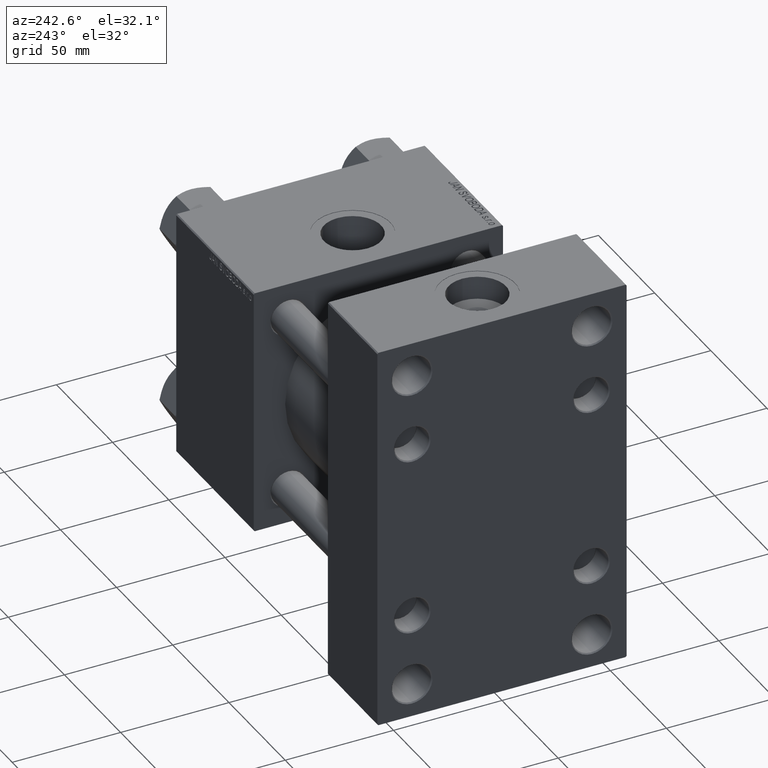
[diagram: clean part render]
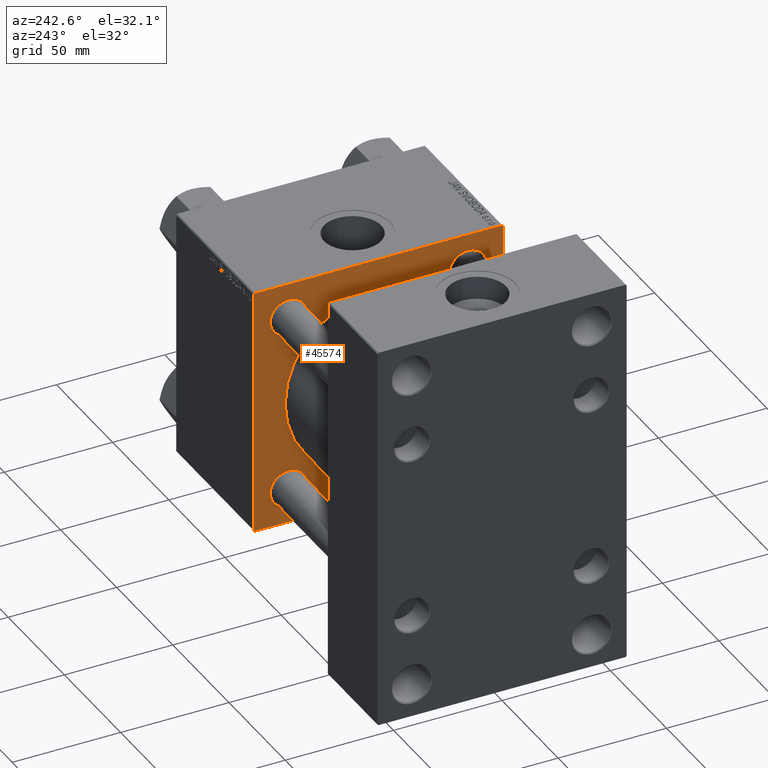
[diagram: same view with one face highlighted and labeled with its STEP entity id]
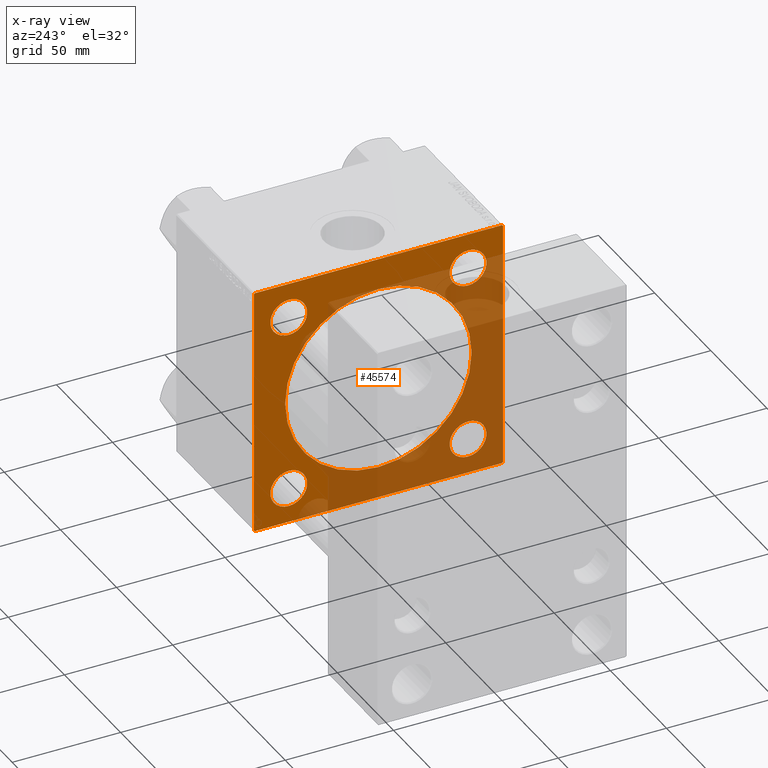
[diagram: x-ray of the same camera — body ghosted, the highlighted face saturated]
A machine part, auxiliary view. The second image highlights one B-rep face of the part: STEP entity #45574.
The next image is the same camera in x-ray: the body ghosted, the highlighted face saturated — about 48% of this face is hidden behind the body in this view.
In plain terms, the highlighted planar face has unit normal (-1, 0, 0).
Its self-contained STEP definition (entity closure, byte-faithful):
#1096 = CARTESIAN_POINT ( 'NONE',  ( 110.0000000000000000, 2.663896022368408223E-15, -43.00000000000000000 ) ) ;
#1268 = EDGE_CURVE ( 'NONE', #13374, #6201, #14931, .T. ) ;
#1308 = ORIENTED_EDGE ( 'NONE', *, *, #14150, .T. ) ;
#1737 = VERTEX_POINT ( 'NONE', #25054 ) ;
#2144 = LINE ( 'NONE', #24595, #23057 ) ;
#2220 = VECTOR ( 'NONE', #29420, 1000.000000000000000 ) ;
#2839 = CIRCLE ( 'NONE', #19927, 43.00000000000000000 ) ;
#4101 = LINE ( 'NONE', #4597, #12709 ) ;
#4143 = CARTESIAN_POINT ( 'NONE',  ( 110.0000000000000000, -57.25000000000117950, -57.24999999999879918 ) ) ;
#4155 = EDGE_CURVE ( 'NONE', #20512, #32392, #2839, .T. ) ;
#4597 = CARTESIAN_POINT ( 'NONE',  ( 110.0000000000000000, 57.50000000000000000, -57.49999999999996447 ) ) ;
#4680 = VECTOR ( 'NONE', #15328, 1000.000000000000000 ) ;
#5258 = ORIENTED_EDGE ( 'NONE', *, *, #12488, .T. ) ;
#5855 = EDGE_CURVE ( 'NONE', #6201, #13374, #27214, .T. ) ;
#6056 = ORIENTED_EDGE ( 'NONE', *, *, #1268, .T. ) ;
#6201 = VERTEX_POINT ( 'NONE', #44701 ) ;
#6450 = VERTEX_POINT ( 'NONE', #17505 ) ;
#6710 = LINE ( 'NONE', #10771, #30914 ) ;
#6880 = DIRECTION ( 'NONE',  ( 1.000000000000000000, -0.000000000000000000, 0.000000000000000000 ) ) ;
#7529 = ORIENTED_EDGE ( 'NONE', *, *, #4155, .T. ) ;
#7714 = AXIS2_PLACEMENT_3D ( 'NONE', #41591, #25758, #45415 ) ;
#7779 = CARTESIAN_POINT ( 'NONE',  ( 110.0000000000000000, -41.34999999999998721, -41.35000000000000853 ) ) ;
#8252 = ORIENTED_EDGE ( 'NONE', *, *, #34180, .T. ) ;
#8309 = ORIENTED_EDGE ( 'NONE', *, *, #33064, .T. ) ;
#8617 = ORIENTED_EDGE ( 'NONE', *, *, #11224, .T. ) ;
#8866 = LINE ( 'NONE', #40012, #22614 ) ;
#9639 = DIRECTION ( 'NONE',  ( 1.000000000000000000, 0.000000000000000000, 0.000000000000000000 ) ) ;
#9655 = EDGE_CURVE ( 'NONE', #42809, #18803, #17510, .T. ) ;
#10030 = DIRECTION ( 'NONE',  ( 0.000000000000000000, 0.000000000000000000, 1.000000000000000000 ) ) ;
#10059 = DIRECTION ( 'NONE',  ( 1.000000000000000000, -0.000000000000000000, 0.000000000000000000 ) ) ;
#10268 = AXIS2_PLACEMENT_3D ( 'NONE', #24277, #21190, #36758 ) ;
#10771 = CARTESIAN_POINT ( 'NONE',  ( 110.0000000000000000, 57.25000000000159872, 57.24999999999842970 ) ) ;
#11018 = DIRECTION ( 'NONE',  ( 0.000000000000000000, 0.000000000000000000, -1.000000000000000000 ) ) ;
#11224 = EDGE_CURVE ( 'NONE', #14799, #12383, #42094, .T. ) ;
#11510 = DIRECTION ( 'NONE',  ( -1.000000000000000000, 0.000000000000000000, -0.000000000000000000 ) ) ;
#11641 = ORIENTED_EDGE ( 'NONE', *, *, #49983, .T. ) ;
#12383 = VERTEX_POINT ( 'NONE', #47966 ) ;
#12488 = EDGE_CURVE ( 'NONE', #37926, #28190, #37203, .T. ) ;
#12699 = VERTEX_POINT ( 'NONE', #27269 ) ;
#12709 = VECTOR ( 'NONE', #19650, 1000.000000000000000 ) ;
#12978 = ORIENTED_EDGE ( 'NONE', *, *, #46031, .T. ) ;
#13097 = VERTEX_POINT ( 'NONE', #22768 ) ;
#13374 = VERTEX_POINT ( 'NONE', #39272 ) ;
#13852 = CARTESIAN_POINT ( 'NONE',  ( 110.0000000000000000, -41.34999999999998721, 41.35000000000000853 ) ) ;
#13949 = DIRECTION ( 'NONE',  ( -0.000000000000000000, -0.7071067811865474617, -0.7071067811865474617 ) ) ;
#14150 = EDGE_CURVE ( 'NONE', #1737, #26253, #6710, .T. ) ;
#14454 = CIRCLE ( 'NONE', #41373, 8.500000000000007105 ) ;
#14799 = VERTEX_POINT ( 'NONE', #16977 ) ;
#14816 = CARTESIAN_POINT ( 'NONE',  ( 110.0000000000000000, -41.34999999999998721, 49.85000000000002274 ) ) ;
#14931 = CIRCLE ( 'NONE', #49966, 8.500000000000007105 ) ;
#15328 = DIRECTION ( 'NONE',  ( 0.000000000000000000, 0.000000000000000000, -1.000000000000000000 ) ) ;
#15598 = EDGE_LOOP ( 'NONE', ( #8309, #33705 ) ) ;
#16551 = EDGE_LOOP ( 'NONE', ( #7529, #28472 ) ) ;
#16977 = CARTESIAN_POINT ( 'NONE',  ( 110.0000000000000000, 41.34999999999999432, -49.85000000000001563 ) ) ;
#17505 = CARTESIAN_POINT ( 'NONE',  ( 110.0000000000000000, -57.49999999999999289, -56.99999999999997868 ) ) ;
#17510 = CIRCLE ( 'NONE', #49312, 8.500000000000007105 ) ;
#17970 = CARTESIAN_POINT ( 'NONE',  ( 110.0000000000000000, 57.50000000000000000, 57.50000000000000711 ) ) ;
#18201 = CARTESIAN_POINT ( 'NONE',  ( 110.0000000000000000, 57.50000000000000000, 57.00000000000000711 ) ) ;
#18253 = DIRECTION ( 'NONE',  ( 0.000000000000000000, 0.000000000000000000, 1.000000000000000000 ) ) ;
#18711 = CARTESIAN_POINT ( 'NONE',  ( 110.0000000000000000, 57.50000000000000000, -56.99999999999994316 ) ) ;
#18803 = VERTEX_POINT ( 'NONE', #37963 ) ;
#19011 = DIRECTION ( 'NONE',  ( 1.000000000000000000, -0.000000000000000000, 0.000000000000000000 ) ) ;
#19390 = DIRECTION ( 'NONE',  ( 0.000000000000000000, 0.000000000000000000, 1.000000000000000000 ) ) ;
#19650 = DIRECTION ( 'NONE',  ( 0.000000000000000000, -1.000000000000000000, -1.206764157201257291E-16 ) ) ;
#19927 = AXIS2_PLACEMENT_3D ( 'NONE', #23018, #35027, #11018 ) ;
#20512 = VERTEX_POINT ( 'NONE', #38649 ) ;
#20986 = CIRCLE ( 'NONE', #49508, 8.500000000000007105 ) ;
#21190 = DIRECTION ( 'NONE',  ( 1.000000000000000000, -0.000000000000000000, 0.000000000000000000 ) ) ;
#21325 = EDGE_CURVE ( 'NONE', #32392, #20512, #24588, .T. ) ;
#21721 = CARTESIAN_POINT ( 'NONE',  ( 110.0000000000000000, 56.99999999999997158, -57.49999999999996447 ) ) ;
#22001 = LINE ( 'NONE', #44725, #2220 ) ;
#22614 = VECTOR ( 'NONE', #13949, 1000.000000000000114 ) ;
#22768 = CARTESIAN_POINT ( 'NONE',  ( 110.0000000000000000, -57.00000000000001421, -57.49999999999997868 ) ) ;
#23018 = CARTESIAN_POINT ( 'NONE',  ( 110.0000000000000000, -2.602085213965210642E-15, 0.000000000000000000 ) ) ;
#23057 = VECTOR ( 'NONE', #33016, 1000.000000000000000 ) ;
#23125 = ORIENTED_EDGE ( 'NONE', *, *, #47619, .T. ) ;
#23884 = CARTESIAN_POINT ( 'NONE',  ( 110.0000000000000000, -57.00000000000004263, 57.49999999999999289 ) ) ;
#24277 = CARTESIAN_POINT ( 'NONE',  ( 110.0000000000000000, 41.34999999999999432, -41.35000000000000142 ) ) ;
#24588 = CIRCLE ( 'NONE', #31915, 43.00000000000000000 ) ;
#24595 = CARTESIAN_POINT ( 'NONE',  ( 110.0000000000000000, 57.50000000000000000, 57.50000000000000711 ) ) ;
#25054 = CARTESIAN_POINT ( 'NONE',  ( 110.0000000000000000, 57.00000000000002842, 57.50000000000000711 ) ) ;
#25259 = EDGE_LOOP ( 'NONE', ( #11641, #8617 ) ) ;
#25332 = DIRECTION ( 'NONE',  ( 0.000000000000000000, 0.7071067811865279218, -0.7071067811865671127 ) ) ;
#25758 = DIRECTION ( 'NONE',  ( 1.000000000000000000, -0.000000000000000000, 0.000000000000000000 ) ) ;
#26253 = VERTEX_POINT ( 'NONE', #18201 ) ;
#26336 = FACE_BOUND ( 'NONE', #25259, .T. ) ;
#26592 = CARTESIAN_POINT ( 'NONE',  ( 110.0000000000000000, 0.000000000000000000, 0.000000000000000000 ) ) ;
#26843 = DIRECTION ( 'NONE',  ( 1.000000000000000000, -0.000000000000000000, 0.000000000000000000 ) ) ;
#27085 = CARTESIAN_POINT ( 'NONE',  ( 110.0000000000000000, -57.49999999999999289, 57.49999999999999289 ) ) ;
#27214 = CIRCLE ( 'NONE', #38634, 8.500000000000007105 ) ;
#27269 = CARTESIAN_POINT ( 'NONE',  ( 110.0000000000000000, -57.49999999999999289, 57.00000000000004974 ) ) ;
#28081 = CIRCLE ( 'NONE', #7714, 8.500000000000007105 ) ;
#28190 = VERTEX_POINT ( 'NONE', #14816 ) ;
#28427 = ORIENTED_EDGE ( 'NONE', *, *, #5855, .T. ) ;
#28469 = DIRECTION ( 'NONE',  ( 0.000000000000000000, 0.000000000000000000, 1.000000000000000000 ) ) ;
#28472 = ORIENTED_EDGE ( 'NONE', *, *, #21325, .T. ) ;
#28849 = EDGE_CURVE ( 'NONE', #1737, #37842, #2144, .T. ) ;
#29420 = DIRECTION ( 'NONE',  ( -0.000000000000000000, 0.7071067811865524577, 0.7071067811865426878 ) ) ;
#30705 = VECTOR ( 'NONE', #35278, 1000.000000000000000 ) ;
#30779 = VERTEX_POINT ( 'NONE', #18711 ) ;
#30914 = VECTOR ( 'NONE', #25332, 1000.000000000000000 ) ;
#30920 = LINE ( 'NONE', #17970, #37084 ) ;
#30923 = DIRECTION ( 'NONE',  ( 0.000000000000000000, 0.000000000000000000, 1.000000000000000000 ) ) ;
#31644 = DIRECTION ( 'NONE',  ( 1.000000000000000000, -0.000000000000000000, 0.000000000000000000 ) ) ;
#31915 = AXIS2_PLACEMENT_3D ( 'NONE', #44628, #9639, #45126 ) ;
#32392 = VERTEX_POINT ( 'NONE', #1096 ) ;
#33016 = DIRECTION ( 'NONE',  ( 0.000000000000000000, -1.000000000000000000, -1.206764157201257291E-16 ) ) ;
#33064 = EDGE_CURVE ( 'NONE', #18803, #42809, #28081, .T. ) ;
#33088 = ORIENTED_EDGE ( 'NONE', *, *, #50433, .T. ) ;
#33542 = ORIENTED_EDGE ( 'NONE', *, *, #45433, .T. ) ;
#33691 = DIRECTION ( 'NONE',  ( 0.000000000000000000, 0.000000000000000000, 1.000000000000000000 ) ) ;
#33705 = ORIENTED_EDGE ( 'NONE', *, *, #9655, .T. ) ;
#33985 = AXIS2_PLACEMENT_3D ( 'NONE', #38017, #6880, #33691 ) ;
#34180 = EDGE_CURVE ( 'NONE', #26253, #30779, #30920, .T. ) ;
#35012 = FACE_BOUND ( 'NONE', #44074, .T. ) ;
#35027 = DIRECTION ( 'NONE',  ( 1.000000000000000000, 0.000000000000000000, 0.000000000000000000 ) ) ;
#35229 = CARTESIAN_POINT ( 'NONE',  ( 110.0000000000000000, 41.34999999999999432, -41.35000000000000142 ) ) ;
#35278 = DIRECTION ( 'NONE',  ( 0.000000000000000000, -0.7071067811865328068, 0.7071067811865622277 ) ) ;
#36758 = DIRECTION ( 'NONE',  ( 0.000000000000000000, 0.000000000000000000, 1.000000000000000000 ) ) ;
#37084 = VECTOR ( 'NONE', #50279, 1000.000000000000000 ) ;
#37203 = CIRCLE ( 'NONE', #33985, 8.500000000000007105 ) ;
#37302 = ORIENTED_EDGE ( 'NONE', *, *, #45515, .F. ) ;
#37842 = VERTEX_POINT ( 'NONE', #23884 ) ;
#37926 = VERTEX_POINT ( 'NONE', #40967 ) ;
#37963 = CARTESIAN_POINT ( 'NONE',  ( 110.0000000000000000, 41.34999999999999432, 49.85000000000001563 ) ) ;
#38017 = CARTESIAN_POINT ( 'NONE',  ( 110.0000000000000000, -41.34999999999998721, 41.35000000000000853 ) ) ;
#38579 = PLANE ( 'NONE',  #38891 ) ;
#38634 = AXIS2_PLACEMENT_3D ( 'NONE', #7779, #19011, #18253 ) ;
#38649 = CARTESIAN_POINT ( 'NONE',  ( 110.0000000000000000, -2.602085213965210642E-15, 43.00000000000000000 ) ) ;
#38828 = DIRECTION ( 'NONE',  ( -0.000000000000000000, 0.000000000000000000, 1.000000000000000000 ) ) ;
#38891 = AXIS2_PLACEMENT_3D ( 'NONE', #26592, #11510, #38828 ) ;
#39272 = CARTESIAN_POINT ( 'NONE',  ( 110.0000000000000000, -41.34999999999998721, -32.85000000000000142 ) ) ;
#39868 = CARTESIAN_POINT ( 'NONE',  ( 110.0000000000000000, 41.34999999999999432, 32.84999999999999432 ) ) ;
#40012 = CARTESIAN_POINT ( 'NONE',  ( 110.0000000000000000, 57.24999999999996447, -57.24999999999996447 ) ) ;
#40967 = CARTESIAN_POINT ( 'NONE',  ( 110.0000000000000000, -41.34999999999998721, 32.85000000000000142 ) ) ;
#41373 = AXIS2_PLACEMENT_3D ( 'NONE', #35229, #31644, #19390 ) ;
#41591 = CARTESIAN_POINT ( 'NONE',  ( 110.0000000000000000, 41.34999999999999432, 41.35000000000000142 ) ) ;
#41904 = LINE ( 'NONE', #27085, #4680 ) ;
#42094 = CIRCLE ( 'NONE', #10268, 8.500000000000007105 ) ;
#42809 = VERTEX_POINT ( 'NONE', #39868 ) ;
#42848 = VERTEX_POINT ( 'NONE', #21721 ) ;
#43834 = EDGE_CURVE ( 'NONE', #42848, #13097, #4101, .T. ) ;
#44074 = EDGE_LOOP ( 'NONE', ( #6056, #28427 ) ) ;
#44278 = CARTESIAN_POINT ( 'NONE',  ( 110.0000000000000000, 41.34999999999999432, 41.35000000000000142 ) ) ;
#44505 = DIRECTION ( 'NONE',  ( 1.000000000000000000, -0.000000000000000000, 0.000000000000000000 ) ) ;
#44628 = CARTESIAN_POINT ( 'NONE',  ( 110.0000000000000000, -2.602085213965210642E-15, 0.000000000000000000 ) ) ;
#44701 = CARTESIAN_POINT ( 'NONE',  ( 110.0000000000000000, -41.34999999999998721, -49.85000000000002274 ) ) ;
#44725 = CARTESIAN_POINT ( 'NONE',  ( 110.0000000000000000, -57.24999999999962341, 57.25000000000041211 ) ) ;
#44808 = ORIENTED_EDGE ( 'NONE', *, *, #43834, .T. ) ;
#45063 = ORIENTED_EDGE ( 'NONE', *, *, #28849, .F. ) ;
#45126 = DIRECTION ( 'NONE',  ( 0.000000000000000000, 0.000000000000000000, -1.000000000000000000 ) ) ;
#45415 = DIRECTION ( 'NONE',  ( 0.000000000000000000, 0.000000000000000000, 1.000000000000000000 ) ) ;
#45433 = EDGE_CURVE ( 'NONE', #12699, #37842, #22001, .T. ) ;
#45515 = EDGE_CURVE ( 'NONE', #12699, #6450, #41904, .T. ) ;
#45574 = ADVANCED_FACE ( 'NONE', ( #49539, #50281, #26336, #35012, #46472, #45723 ), #38579, .T. ) ;
#45723 = FACE_OUTER_BOUND ( 'NONE', #48785, .T. ) ;
#46031 = EDGE_CURVE ( 'NONE', #30779, #42848, #8866, .T. ) ;
#46472 = FACE_BOUND ( 'NONE', #16551, .T. ) ;
#46868 = EDGE_LOOP ( 'NONE', ( #33088, #5258 ) ) ;
#47619 = EDGE_CURVE ( 'NONE', #13097, #6450, #50304, .T. ) ;
#47966 = CARTESIAN_POINT ( 'NONE',  ( 110.0000000000000000, 41.34999999999999432, -32.84999999999999432 ) ) ;
#48785 = EDGE_LOOP ( 'NONE', ( #44808, #23125, #37302, #33542, #45063, #1308, #8252, #12978 ) ) ;
#49312 = AXIS2_PLACEMENT_3D ( 'NONE', #44278, #10059, #28469 ) ;
#49508 = AXIS2_PLACEMENT_3D ( 'NONE', #13852, #44505, #10030 ) ;
#49539 = FACE_BOUND ( 'NONE', #46868, .T. ) ;
#49966 = AXIS2_PLACEMENT_3D ( 'NONE', #50028, #26843, #30923 ) ;
#49983 = EDGE_CURVE ( 'NONE', #12383, #14799, #14454, .T. ) ;
#50028 = CARTESIAN_POINT ( 'NONE',  ( 110.0000000000000000, -41.34999999999998721, -41.35000000000000853 ) ) ;
#50279 = DIRECTION ( 'NONE',  ( 0.000000000000000000, 0.000000000000000000, -1.000000000000000000 ) ) ;
#50281 = FACE_BOUND ( 'NONE', #15598, .T. ) ;
#50304 = LINE ( 'NONE', #4143, #30705 ) ;
#50433 = EDGE_CURVE ( 'NONE', #28190, #37926, #20986, .T. ) ;